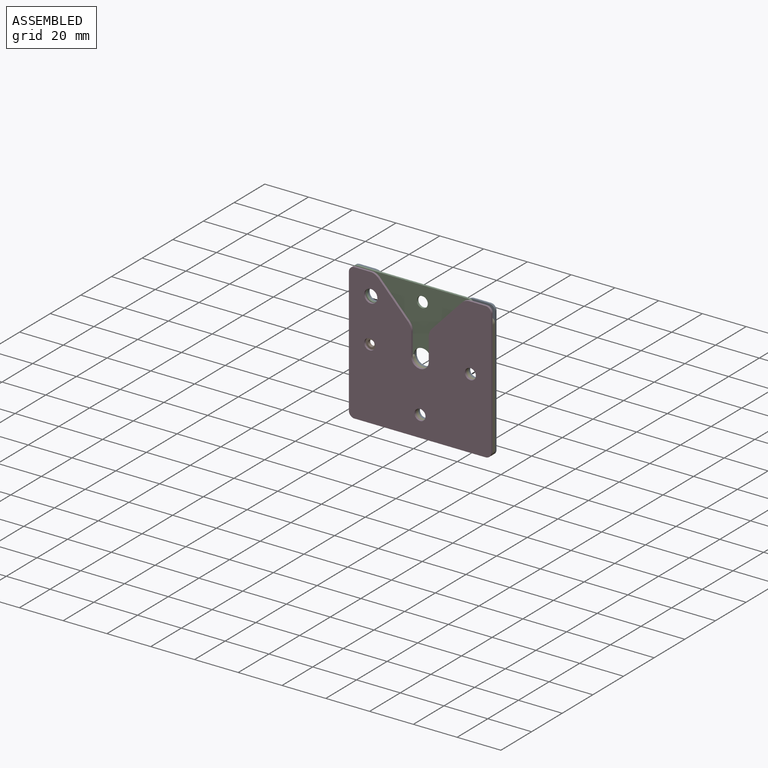
[diagram: assembled view]
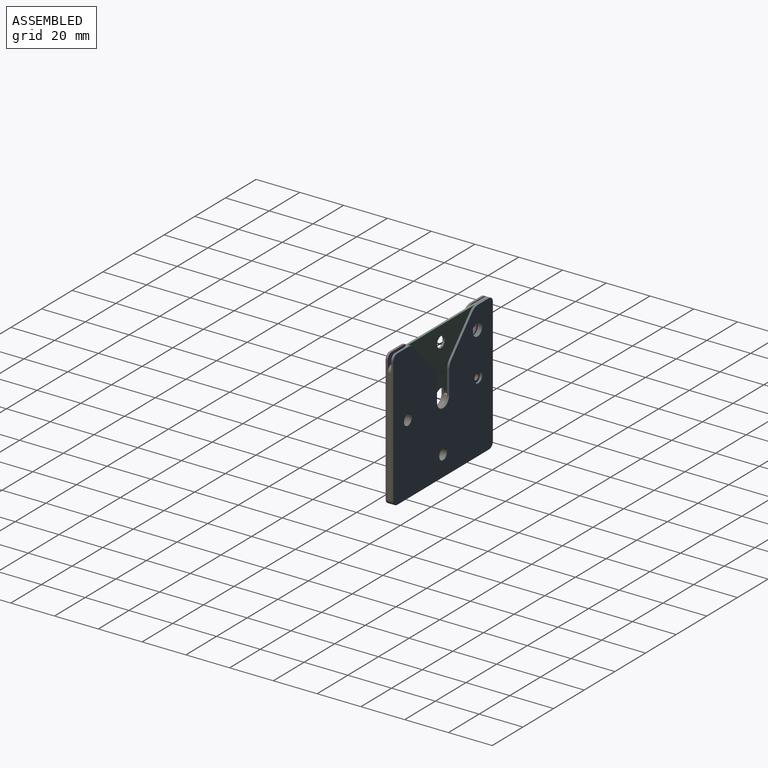
[diagram: assembled view, second angle]
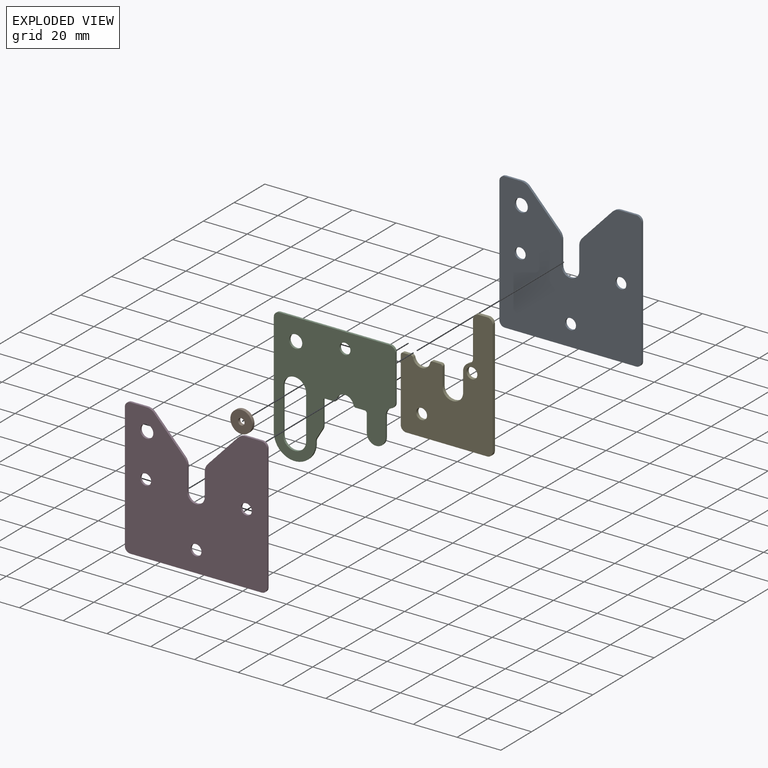
[diagram: exploded view]
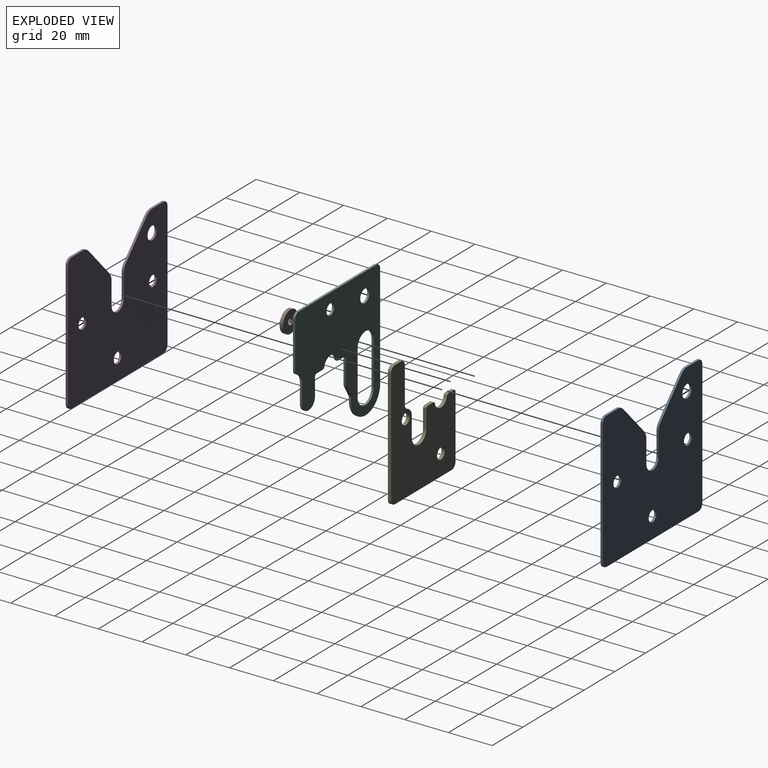
[diagram: exploded view, second angle]
ASSEMBLY  parts=5 mates=4
PART A: 24 faces, bbox 65x1x62.5 mm
  f0: plane 10.51x1mm, normal (-1,0,0), area 10.5mm2, adj f1,f10,f11,f20
  f1: cylinder r=4mm len=8mm, axis (0,1,0), area 12.6mm2, adj f0,f2,f10,f11
  f2: plane 10.51x1mm, normal (1,0,0), area 10.5mm2, adj f1,f10,f11,f21
  f3: plane 14.49x13.66mm, normal (0.73,0,0.69), area 19.9mm2, adj f10,f11,f21,f22
  f4: plane 7.34x1mm, normal (0,0,1), area 7.3mm2, adj f10,f11,f15,f22
  f5: plane 57.5x1mm, normal (-1,0,0), area 57.5mm2, adj f10,f11,f15,f16
  f6: plane 60x1mm, normal (0,0,-1), area 60mm2, adj f10,f11,f16,f17
  f7: plane 57.5x1mm, normal (1,0,0), area 57.5mm2, adj f10,f11,f17,f18
  f8: plane 7.34x1mm, normal (0,0,1), area 7.3mm2, adj f10,f11,f18,f23
  f9: cylinder r=3mm len=6mm, axis (0,1,0), area 18.8mm2, adj f10,f11
  f10: plane 65x62.5mm, normal (0,-1,0), area 3413.9mm2, adj f0,f1,f2,f3,f4,f5,f6,f7
  f11: plane 65x62.5mm, normal (0,1,0), area 3413.9mm2, adj f0,f1,f2,f3,f4,f5,f6,f7
  f12: cylinder r=2.5mm len=5mm, axis (0,-1,0), area 15.7mm2, adj f10,f11
  f13: cylinder r=2.5mm len=5mm, axis (0,-1,0), area 15.7mm2, adj f10,f11
  f14: cylinder r=2.5mm len=5mm, axis (0,-1,0), area 15.7mm2, adj f10,f11
  f15: cylinder r=2.5mm len=2.5mm, axis (0,1,0), area 3.9mm2, adj f4,f5,f10,f11
  f16: cylinder r=2.5mm len=2.5mm, axis (0,1,0), area 3.9mm2, adj f5,f6,f10,f11
  f17: cylinder r=2.5mm len=2.5mm, axis (0,-1,0), area 3.9mm2, adj f6,f7,f10,f11
  f18: cylinder r=2.5mm len=2.5mm, axis (0,1,0), area 3.9mm2, adj f7,f8,f10,f11
  f19: plane 14.49x13.66mm, normal (-0.73,0,0.69), area 19.9mm2, adj f10,f11,f20,f23
  f20: cylinder r=5mm len=3.43mm, axis (0,1,0), area 3.8mm2, adj f0,f10,f11,f19
  f21: cylinder r=5mm len=3.43mm, axis (0,-1,0), area 3.8mm2, adj f2,f3,f10,f11
  f22: cylinder r=5mm len=3.64mm, axis (0,-1,0), area 4.1mm2, adj f3,f4,f10,f11
  f23: cylinder r=5mm len=3.64mm, axis (0,1,0), area 4.1mm2, adj f8,f10,f11,f19
PART B: 4 faces, bbox 10x1.5x10 mm
  f0: cylinder r=1.5mm len=3mm, axis (0,1,0), area 14.1mm2, adj f2,f3
  f1: cylinder r=5mm len=10mm, axis (0,1,0), area 47.1mm2, adj f2,f3
  f2: plane 10x10mm, normal (0,-1,0), area 71.5mm2, adj f0,f1
  f3: plane 10x10mm, normal (0,1,0), area 71.5mm2, adj f0,f1
PART C: 31 faces, bbox 55.5x1x59.5 mm
  f0: plane 20x1mm, normal (1,0,0), area 20mm2, adj f1,f17,f20,f21
  f1: cylinder r=5.25mm len=10.5mm, axis (0,1,0), area 16.5mm2, adj f0,f2,f20,f21
  f2: plane 20x1mm, normal (-1,0,0), area 20mm2, adj f1,f17,f20,f21
  f3: plane 4.1x1mm, normal (0,0,1), area 4.1mm2, adj f20,f21,f27,f30
  f4: plane 8x1mm, normal (1,0,0), area 8mm2, adj f5,f20,f21,f27
  f5: cylinder r=4.25mm len=8.5mm, axis (0,1,0), area 13.4mm2, adj f4,f6,f20,f21
  f6: plane 9x1mm, normal (-1,0,0), area 9mm2, adj f5,f7,f20,f21
  f7: cylinder r=4.5mm len=4.2mm, axis (0,1,0), area 5.4mm2, adj f6,f20,f21,f24
  f8: plane 20.96x1mm, normal (-1,0,0), area 21mm2, adj f20,f21,f24,f25
  f9: plane 50.5x1mm, normal (0,0,-1), area 50.5mm2, adj f20,f21,f25,f26
  f10: plane 47.5x1mm, normal (1,0,0), area 47.5mm2, adj f11,f20,f21,f26
  f11: cylinder r=9.5mm len=19mm, axis (0,1,0), area 29.8mm2, adj f10,f12,f20,f21
  f12: plane 1x0.97mm, normal (-1,0,0), area 1mm2, adj f11,f20,f21,f22
  f13: plane 4.65x2.79mm, normal (-0.86,0,0.51), area 5.4mm2, adj f20,f21,f22,f23
  f14: plane 10.81x1mm, normal (-1,0,0), area 10.8mm2, adj f20,f21,f23,f28
  f15: plane 4.1x1mm, normal (0,0,1), area 4.1mm2, adj f20,f21,f28,f29
  f16: cylinder r=3mm len=6mm, axis (0,1,0), area 18.8mm2, adj f20,f21
  f17: cylinder r=5.25mm len=10.5mm, axis (0,1,0), area 16.5mm2, adj f0,f2,f20,f21
  f18: cylinder r=4mm len=7.84mm, axis (0,1,0), area 11mm2, adj f20,f21,f29,f30
  f19: cylinder r=2.5mm len=5mm, axis (0,1,0), area 15.7mm2, adj f20,f21
  f20: plane 59.5x55.5mm, normal (0,-1,0), area 1956.8mm2, adj f0,f1,f2,f3,f4,f5,f6,f7
  f21: plane 59.5x55.5mm, normal (0,1,0), area 1956.8mm2, adj f0,f1,f2,f3,f4,f5,f6,f7
  f22: cylinder r=2.5mm len=1.29mm, axis (0,-1,0), area 1.4mm2, adj f12,f13,f20,f21
  f23: cylinder r=2.5mm len=1.29mm, axis (0,-1,0), area 1.4mm2, adj f13,f14,f20,f21
  f24: cylinder r=2.5mm len=2.34mm, axis (0,1,0), area 3mm2, adj f7,f8,f20,f21
  f25: cylinder r=2.5mm len=2.5mm, axis (0,1,0), area 3.9mm2, adj f8,f9,f20,f21
  f26: cylinder r=2.5mm len=2.5mm, axis (0,-1,0), area 3.9mm2, adj f9,f10,f20,f21
  f27: cylinder r=1mm len=1mm, axis (0,-1,0), area 1.6mm2, adj f3,f4,f20,f21
  f28: cylinder r=1mm len=1mm, axis (0,-1,0), area 1.6mm2, adj f14,f15,f20,f21
  f29: cylinder r=1mm len=1mm, axis (0,1,0), area 1.4mm2, adj f15,f18,f20,f21
  f30: cylinder r=1mm len=1mm, axis (0,1,0), area 1.4mm2, adj f3,f18,f20,f21
PART D: same geometry as A
PART E: 25 faces, bbox 42x1.5x57.5 mm
  f0: plane 37x1.5mm, normal (0,0,1), area 55.5mm2, adj f14,f15,f16,f17
  f1: plane 52.48x1.5mm, normal (-1,0,0), area 78.7mm2, adj f14,f15,f17,f18
  f2: plane 3.98x1.5mm, normal (0.01,0,-1), area 6mm2, adj f14,f15,f18,f19
  f3: plane 16.35x1.5mm, normal (1,0,0), area 24.5mm2, adj f14,f15,f19,f20
  f4: cylinder r=4mm len=3.81mm, axis (0,1,0), area 7.6mm2, adj f5,f14,f15,f20
  f5: plane 8.88x1.5mm, normal (1,0,0), area 13.3mm2, adj f4,f6,f14,f15
  f6: cylinder r=4.75mm len=9.5mm, axis (0,1,0), area 22.6mm2, adj f5,f7,f14,f15
  f7: plane 8.1x1.5mm, normal (-1,0,0), area 12.1mm2, adj f6,f14,f15,f23
  f8: plane 3.6x1.5mm, normal (0,0,-1), area 5.4mm2, adj f14,f15,f23,f24
  f9: cylinder r=4mm len=7.84mm, axis (0,1,0), area 16.4mm2, adj f14,f15,f21,f24
  f10: plane 3.6x1.5mm, normal (0,0,-1), area 5.4mm2, adj f14,f15,f21,f22
  f11: cylinder r=2.5mm len=5mm, axis (0,1,0), area 23.6mm2, adj f14,f15
  f12: plane 29x1.5mm, normal (1,0,0), area 43.5mm2, adj f14,f15,f16,f22
  f13: cylinder r=2.5mm len=5mm, axis (0,1,0), area 23.6mm2, adj f14,f15
  f14: plane 57.48x42mm, normal (0,-1,0), area 1411.8mm2, adj f0,f1,f2,f3,f4,f5,f6,f7
  f15: plane 57.48x42mm, normal (0,1,0), area 1411.8mm2, adj f0,f1,f2,f3,f4,f5,f6,f7
  f16: cylinder r=2.5mm len=2.5mm, axis (0,1,0), area 5.9mm2, adj f0,f12,f14,f15
  f17: cylinder r=2.5mm len=2.5mm, axis (0,1,0), area 5.9mm2, adj f0,f1,f14,f15
  f18: cylinder r=2.5mm len=2.52mm, axis (0,-1,0), area 5.9mm2, adj f1,f2,f14,f15
  f19: cylinder r=2.5mm len=2.5mm, axis (0,-1,0), area 5.9mm2, adj f2,f3,f14,f15
  f20: cylinder r=2.5mm len=2.38mm, axis (0,1,0), area 4.7mm2, adj f3,f4,f14,f15
  f21: cylinder r=1mm len=1.5mm, axis (0,1,0), area 2.1mm2, adj f9,f10,f14,f15
  f22: cylinder r=1mm len=1.5mm, axis (0,-1,0), area 2.4mm2, adj f10,f12,f14,f15
  f23: cylinder r=1mm len=1.5mm, axis (0,-1,0), area 2.4mm2, adj f7,f8,f14,f15
  f24: cylinder r=1mm len=1.5mm, axis (0,1,0), area 2.1mm2, adj f8,f9,f14,f15
PLACE A t=(38.25,30.29,12.82)mm fixed
PLACE B t=(15.25,29.29,12.82)mm
PLACE C rot(axis=(0,1,0),180deg) t=(38.25,29.29,12.82)mm
PLACE D t=(38.25,27.79,12.82)mm
PLACE E rot(axis=(0,1,0),180deg) t=(38.25,29.29,12.82)mm
MATE fastened B.f0 <-> A.f13  axis (0,1,0) through (15.25,29.29,12.82)mm
MATE fastened E.f13 <-> A.f14  axis (0,1,0) through (61.25,29.29,12.82)mm
MATE fastened D.f14 <-> E.f13  axis (0,1,0) through (61.25,27.79,12.82)mm
MATE cylindrical C.f17 <-> B.f1  axis (0,1,0) through (15.25,29.29,12.82)mm
